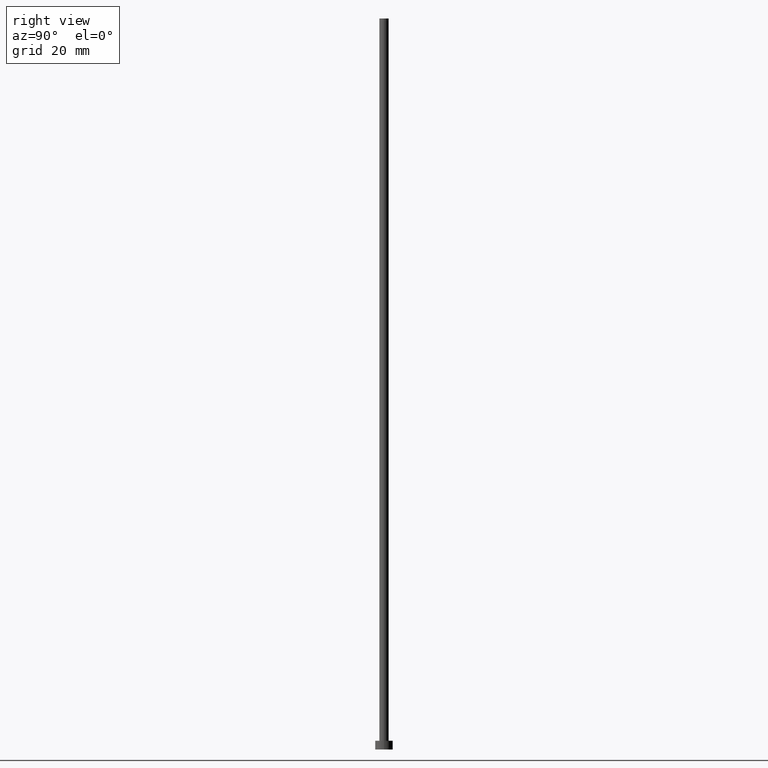
[diagram: clean part render]
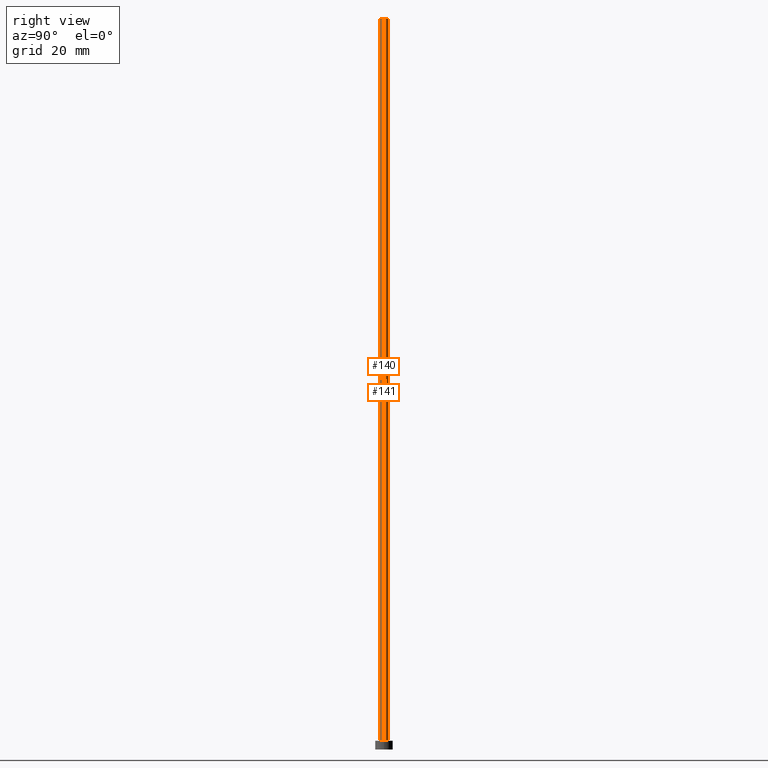
[diagram: same view with one multi-face feature highlighted, each face labeled with its STEP entity id]
A machine part, right view. The highlighted faces form ONE feature: a constant-radius fillet chain: 2 tangent blend faces with common blend radius 1.6 mm. The faces share edges in the B-rep.
Their STEP definitions:
[1] entity #140 (Cylinder):
#4 = DIRECTION ( 'NONE',  ( -0.000000000000000000, -0.000000000000000000, -1.000000000000000000 ) ) ;
#6 = VERTEX_POINT ( 'NONE', #225 ) ;
#8 = LINE ( 'NONE', #23, #183 ) ;
#9 = CYLINDRICAL_SURFACE ( 'NONE', #174, 1.600000000000000089 ) ;
#10 = DIRECTION ( 'NONE',  ( -0.000000000000000000, -0.000000000000000000, -1.000000000000000000 ) ) ;
#13 = ORIENTED_EDGE ( 'NONE', *, *, #61, .T. ) ;
#23 = CARTESIAN_POINT ( 'NONE',  ( -1.600000000000000089, 0.000000000000000000, 250.0000000000000000 ) ) ;
#48 = DIRECTION ( 'NONE',  ( 1.000000000000000000, 0.000000000000000000, 0.000000000000000000 ) ) ;
#52 = CARTESIAN_POINT ( 'NONE',  ( 0.000000000000000000, 0.000000000000000000, 250.0000000000000000 ) ) ;
#53 = EDGE_CURVE ( 'NONE', #238, #162, #126, .T. ) ;
#61 = EDGE_CURVE ( 'NONE', #99, #6, #8, .T. ) ;
#71 = CARTESIAN_POINT ( 'NONE',  ( 0.000000000000000000, 0.000000000000000000, 3.000000000000000000 ) ) ;
#72 = FACE_OUTER_BOUND ( 'NONE', #191, .T. ) ;
#75 = DIRECTION ( 'NONE',  ( 0.000000000000000000, 0.000000000000000000, 1.000000000000000000 ) ) ;
#76 = CARTESIAN_POINT ( 'NONE',  ( 0.000000000000000000, 0.000000000000000000, 250.0000000000000000 ) ) ;
#77 = EDGE_CURVE ( 'NONE', #99, #238, #139, .T. ) ;
#99 = VERTEX_POINT ( 'NONE', #213 ) ;
#108 = DIRECTION ( 'NONE',  ( -0.000000000000000000, -0.000000000000000000, -1.000000000000000000 ) ) ;
#116 = AXIS2_PLACEMENT_3D ( 'NONE', #71, #75, #48 ) ;
#118 = VECTOR ( 'NONE', #4, 1000.000000000000000 ) ;
#126 = LINE ( 'NONE', #179, #118 ) ;
#137 = ORIENTED_EDGE ( 'NONE', *, *, #77, .F. ) ;
#139 = CIRCLE ( 'NONE', #254, 1.600000000000000089 ) ;
#140 = ADVANCED_FACE ( 'NONE', ( #72 ), #9, .T. ) ;
#143 = ORIENTED_EDGE ( 'NONE', *, *, #53, .F. ) ;
#162 = VERTEX_POINT ( 'NONE', #187 ) ;
#174 = AXIS2_PLACEMENT_3D ( 'NONE', #52, #10, #247 ) ;
#175 = EDGE_CURVE ( 'NONE', #6, #162, #250, .T. ) ;
#179 = CARTESIAN_POINT ( 'NONE',  ( 1.600000000000000089, 1.959434878635765230E-16, 250.0000000000000000 ) ) ;
#183 = VECTOR ( 'NONE', #108, 1000.000000000000000 ) ;
#186 = DIRECTION ( 'NONE',  ( 0.000000000000000000, 0.000000000000000000, 1.000000000000000000 ) ) ;
#187 = CARTESIAN_POINT ( 'NONE',  ( 1.600000000000000089, 1.959434878635765230E-16, 3.000000000000000000 ) ) ;
#189 = CARTESIAN_POINT ( 'NONE',  ( 1.600000000000000089, 1.959434878635765230E-16, 250.0000000000000000 ) ) ;
#191 = EDGE_LOOP ( 'NONE', ( #143, #137, #13, #227 ) ) ;
#213 = CARTESIAN_POINT ( 'NONE',  ( -1.600000000000000089, 0.000000000000000000, 250.0000000000000000 ) ) ;
#225 = CARTESIAN_POINT ( 'NONE',  ( -1.600000000000000089, 0.000000000000000000, 3.000000000000000000 ) ) ;
#227 = ORIENTED_EDGE ( 'NONE', *, *, #175, .T. ) ;
#234 = DIRECTION ( 'NONE',  ( 1.000000000000000000, 0.000000000000000000, 0.000000000000000000 ) ) ;
#238 = VERTEX_POINT ( 'NONE', #189 ) ;
#247 = DIRECTION ( 'NONE',  ( -1.000000000000000000, 0.000000000000000000, 0.000000000000000000 ) ) ;
#250 = CIRCLE ( 'NONE', #116, 1.600000000000000089 ) ;
#254 = AXIS2_PLACEMENT_3D ( 'NONE', #76, #186, #234 ) ;
[2] entity #141 (Cylinder):
#2 = DIRECTION ( 'NONE',  ( 0.000000000000000000, 0.000000000000000000, 1.000000000000000000 ) ) ;
#4 = DIRECTION ( 'NONE',  ( -0.000000000000000000, -0.000000000000000000, -1.000000000000000000 ) ) ;
#6 = VERTEX_POINT ( 'NONE', #225 ) ;
#8 = LINE ( 'NONE', #23, #183 ) ;
#22 = AXIS2_PLACEMENT_3D ( 'NONE', #155, #92, #94 ) ;
#23 = CARTESIAN_POINT ( 'NONE',  ( -1.600000000000000089, 0.000000000000000000, 250.0000000000000000 ) ) ;
#26 = EDGE_CURVE ( 'NONE', #238, #99, #54, .T. ) ;
#40 = ORIENTED_EDGE ( 'NONE', *, *, #61, .F. ) ;
#49 = CARTESIAN_POINT ( 'NONE',  ( 0.000000000000000000, 0.000000000000000000, 250.0000000000000000 ) ) ;
#53 = EDGE_CURVE ( 'NONE', #238, #162, #126, .T. ) ;
#54 = CIRCLE ( 'NONE', #161, 1.600000000000000089 ) ;
#61 = EDGE_CURVE ( 'NONE', #99, #6, #8, .T. ) ;
#92 = DIRECTION ( 'NONE',  ( 0.000000000000000000, 0.000000000000000000, 1.000000000000000000 ) ) ;
#93 = FACE_OUTER_BOUND ( 'NONE', #164, .T. ) ;
#94 = DIRECTION ( 'NONE',  ( 1.000000000000000000, 0.000000000000000000, 0.000000000000000000 ) ) ;
#97 = EDGE_CURVE ( 'NONE', #162, #6, #223, .T. ) ;
#99 = VERTEX_POINT ( 'NONE', #213 ) ;
#101 = ORIENTED_EDGE ( 'NONE', *, *, #53, .T. ) ;
#108 = DIRECTION ( 'NONE',  ( -0.000000000000000000, -0.000000000000000000, -1.000000000000000000 ) ) ;
#112 = AXIS2_PLACEMENT_3D ( 'NONE', #49, #188, #233 ) ;
#118 = VECTOR ( 'NONE', #4, 1000.000000000000000 ) ;
#126 = LINE ( 'NONE', #179, #118 ) ;
#141 = ADVANCED_FACE ( 'NONE', ( #93 ), #166, .T. ) ;
#155 = CARTESIAN_POINT ( 'NONE',  ( 0.000000000000000000, 0.000000000000000000, 3.000000000000000000 ) ) ;
#161 = AXIS2_PLACEMENT_3D ( 'NONE', #197, #2, #202 ) ;
#162 = VERTEX_POINT ( 'NONE', #187 ) ;
#164 = EDGE_LOOP ( 'NONE', ( #230, #101, #251, #40 ) ) ;
#166 = CYLINDRICAL_SURFACE ( 'NONE', #112, 1.600000000000000089 ) ;
#179 = CARTESIAN_POINT ( 'NONE',  ( 1.600000000000000089, 1.959434878635765230E-16, 250.0000000000000000 ) ) ;
#183 = VECTOR ( 'NONE', #108, 1000.000000000000000 ) ;
#187 = CARTESIAN_POINT ( 'NONE',  ( 1.600000000000000089, 1.959434878635765230E-16, 3.000000000000000000 ) ) ;
#188 = DIRECTION ( 'NONE',  ( -0.000000000000000000, -0.000000000000000000, -1.000000000000000000 ) ) ;
#189 = CARTESIAN_POINT ( 'NONE',  ( 1.600000000000000089, 1.959434878635765230E-16, 250.0000000000000000 ) ) ;
#197 = CARTESIAN_POINT ( 'NONE',  ( 0.000000000000000000, 0.000000000000000000, 250.0000000000000000 ) ) ;
#202 = DIRECTION ( 'NONE',  ( 1.000000000000000000, 0.000000000000000000, 0.000000000000000000 ) ) ;
#213 = CARTESIAN_POINT ( 'NONE',  ( -1.600000000000000089, 0.000000000000000000, 250.0000000000000000 ) ) ;
#223 = CIRCLE ( 'NONE', #22, 1.600000000000000089 ) ;
#225 = CARTESIAN_POINT ( 'NONE',  ( -1.600000000000000089, 0.000000000000000000, 3.000000000000000000 ) ) ;
#230 = ORIENTED_EDGE ( 'NONE', *, *, #26, .F. ) ;
#233 = DIRECTION ( 'NONE',  ( -1.000000000000000000, 0.000000000000000000, 0.000000000000000000 ) ) ;
#238 = VERTEX_POINT ( 'NONE', #189 ) ;
#251 = ORIENTED_EDGE ( 'NONE', *, *, #97, .T. ) ;